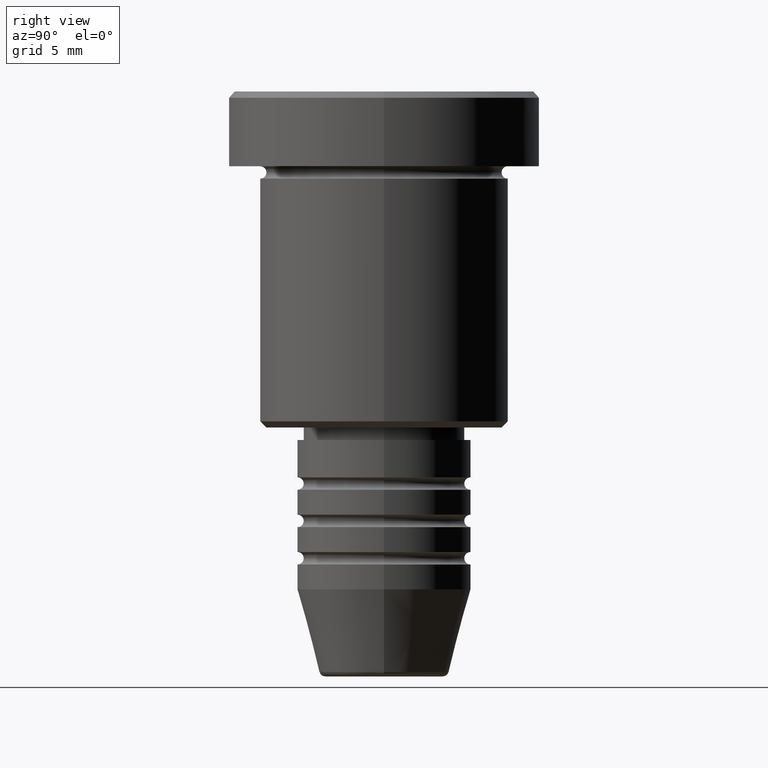
[diagram: clean part render]
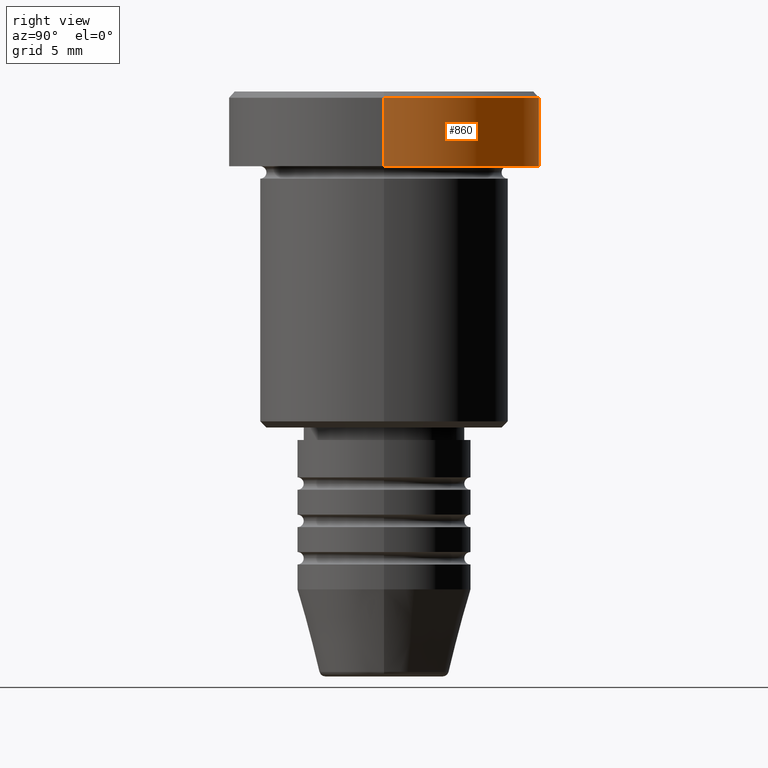
[diagram: same view with one face highlighted and labeled with its STEP entity id]
A machine part, right view. The second image highlights one B-rep face of the part: STEP entity #860.
In plain terms, the highlighted cylindrical surface (partial cylindrical patch) has radius 12.5 mm, axis along (-0, -0, 1).
Its self-contained STEP definition (entity closure, byte-faithful):
#10 = CARTESIAN_POINT ( 'NONE',  ( -12.50000000000000000, 1.530808498934191521E-15, 0.000000000000000000 ) ) ;
#12 = ORIENTED_EDGE ( 'NONE', *, *, #1181, .T. ) ;
#31 = CARTESIAN_POINT ( 'NONE',  ( 0.000000000000000000, 0.000000000000000000, -0.5000000000000126565 ) ) ;
#154 = VERTEX_POINT ( 'NONE', #375 ) ;
#163 = DIRECTION ( 'NONE',  ( 1.000000000000000000, 0.000000000000000000, 0.000000000000000000 ) ) ;
#205 = DIRECTION ( 'NONE',  ( -0.000000000000000000, -0.000000000000000000, 1.000000000000000000 ) ) ;
#227 = EDGE_CURVE ( 'NONE', #154, #1155, #449, .T. ) ;
#262 = EDGE_LOOP ( 'NONE', ( #365, #12, #761, #586 ) ) ;
#279 = CARTESIAN_POINT ( 'NONE',  ( 0.000000000000000000, 0.000000000000000000, -5.999999999999996447 ) ) ;
#365 = ORIENTED_EDGE ( 'NONE', *, *, #583, .T. ) ;
#368 = DIRECTION ( 'NONE',  ( -0.000000000000000000, -0.000000000000000000, 1.000000000000000000 ) ) ;
#375 = CARTESIAN_POINT ( 'NONE',  ( -12.50000000000000000, 1.530808498934191521E-15, -0.5000000000000126565 ) ) ;
#392 = EDGE_CURVE ( 'NONE', #515, #1155, #792, .T. ) ;
#431 = VECTOR ( 'NONE', #955, 1000.000000000000000 ) ;
#448 = LINE ( 'NONE', #10, #824 ) ;
#449 = CIRCLE ( 'NONE', #643, 12.50000000000000000 ) ;
#470 = CARTESIAN_POINT ( 'NONE',  ( -12.50000000000000000, 1.530808498934191521E-15, -5.999999999999996447 ) ) ;
#515 = VERTEX_POINT ( 'NONE', #648 ) ;
#555 = DIRECTION ( 'NONE',  ( 1.000000000000000000, 0.000000000000000000, 0.000000000000000000 ) ) ;
#583 = EDGE_CURVE ( 'NONE', #515, #864, #759, .T. ) ;
#586 = ORIENTED_EDGE ( 'NONE', *, *, #392, .F. ) ;
#640 = DIRECTION ( 'NONE',  ( -0.000000000000000000, -0.000000000000000000, 1.000000000000000000 ) ) ;
#643 = AXIS2_PLACEMENT_3D ( 'NONE', #31, #753, #163 ) ;
#645 = AXIS2_PLACEMENT_3D ( 'NONE', #279, #640, #1049 ) ;
#648 = CARTESIAN_POINT ( 'NONE',  ( 12.50000000000000000, 0.000000000000000000, -5.999999999999996447 ) ) ;
#654 = CARTESIAN_POINT ( 'NONE',  ( 0.000000000000000000, 0.000000000000000000, 0.000000000000000000 ) ) ;
#743 = FACE_OUTER_BOUND ( 'NONE', #262, .T. ) ;
#753 = DIRECTION ( 'NONE',  ( 0.000000000000000000, 0.000000000000000000, -1.000000000000000000 ) ) ;
#759 = CIRCLE ( 'NONE', #645, 12.50000000000000000 ) ;
#761 = ORIENTED_EDGE ( 'NONE', *, *, #227, .T. ) ;
#792 = LINE ( 'NONE', #1156, #431 ) ;
#824 = VECTOR ( 'NONE', #368, 1000.000000000000000 ) ;
#860 = ADVANCED_FACE ( 'NONE', ( #743 ), #1106, .T. ) ;
#864 = VERTEX_POINT ( 'NONE', #470 ) ;
#878 = AXIS2_PLACEMENT_3D ( 'NONE', #654, #205, #555 ) ;
#901 = CARTESIAN_POINT ( 'NONE',  ( 12.50000000000000000, 0.000000000000000000, -0.5000000000000126565 ) ) ;
#955 = DIRECTION ( 'NONE',  ( -0.000000000000000000, -0.000000000000000000, 1.000000000000000000 ) ) ;
#1049 = DIRECTION ( 'NONE',  ( 1.000000000000000000, 0.000000000000000000, 0.000000000000000000 ) ) ;
#1106 = CYLINDRICAL_SURFACE ( 'NONE', #878, 12.50000000000000000 ) ;
#1155 = VERTEX_POINT ( 'NONE', #901 ) ;
#1156 = CARTESIAN_POINT ( 'NONE',  ( 12.50000000000000000, 0.000000000000000000, 0.000000000000000000 ) ) ;
#1181 = EDGE_CURVE ( 'NONE', #864, #154, #448, .T. ) ;